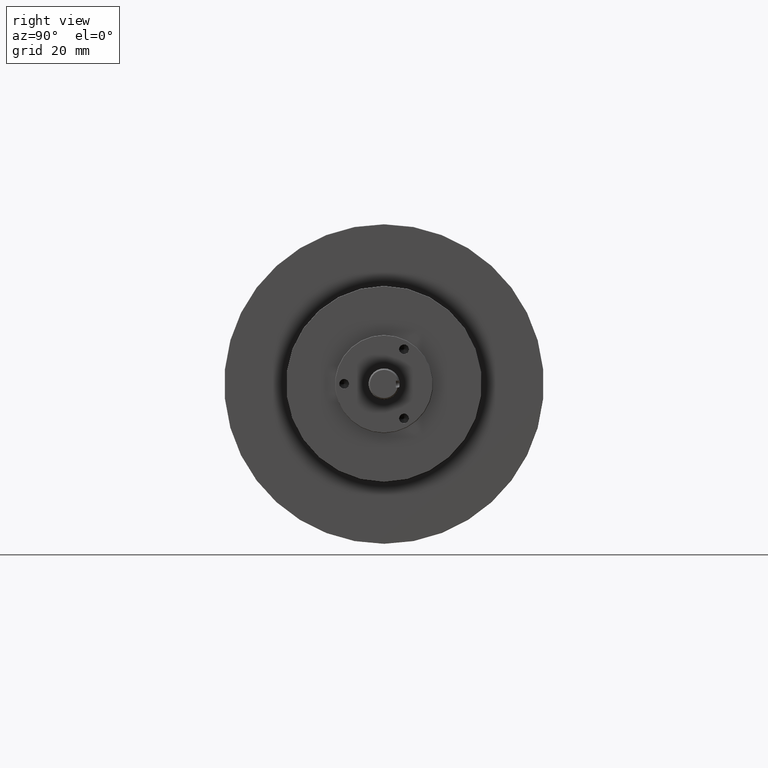
[diagram: clean part render]
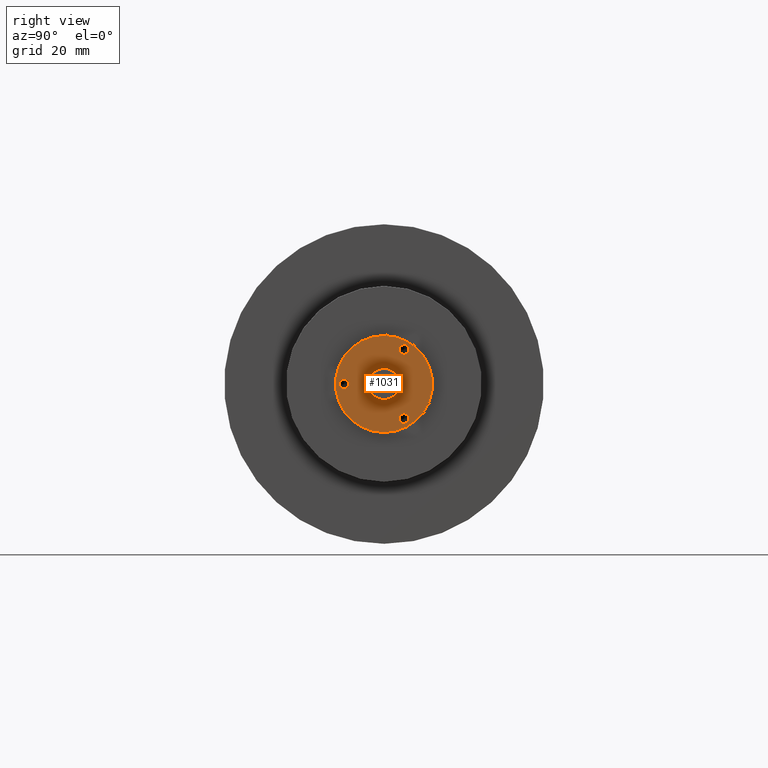
[diagram: same view with one face highlighted and labeled with its STEP entity id]
A machine part, right view. The second image highlights one B-rep face of the part: STEP entity #1031.
In plain terms, the highlighted planar face has unit normal (1, 0, 0).
Its self-contained STEP definition (entity closure, byte-faithful):
#59 = CARTESIAN_POINT ( 'NONE',  ( 6.979999999999999500, 8.388830574159369400E-017, 0.6825000000000000000 ) ) ;
#60 = CARTESIAN_POINT ( 'NONE',  ( 6.979999999999999500, 0.0000000000000000000, -0.6825000000000000000 ) ) ;
#77 = DIRECTION ( 'NONE',  ( 0.0000000000000000000, 0.0000000000000000000, -1.000000000000000000 ) ) ;
#127 = CARTESIAN_POINT ( 'NONE',  ( 6.979999999999999500, 2.675853256136966400E-017, -0.2185000000000000000 ) ) ;
#128 = CARTESIAN_POINT ( 'NONE',  ( 6.979999999999999500, 0.0000000000000000000, 0.2185000000000000000 ) ) ;
#134 = DIRECTION ( 'NONE',  ( 0.0000000000000000000, 0.0000000000000000000, -1.000000000000000000 ) ) ;
#136 = CARTESIAN_POINT ( 'NONE',  ( 6.979999999999999500, -0.5625000000000000000, 0.0000000000000000000 ) ) ;
#143 = DIRECTION ( 'NONE',  ( 1.000000000000000000, -0.0000000000000000000, -0.0000000000000000000 ) ) ;
#165 = DIRECTION ( 'NONE',  ( 1.000000000000000000, 0.0000000000000000000, 0.0000000000000000000 ) ) ;
#166 = CARTESIAN_POINT ( 'NONE',  ( 6.979999999999999500, 0.0000000000000000000, 0.0000000000000000000 ) ) ;
#167 = EDGE_CURVE ( 'NONE', #246, #245, #1280, .T. ) ;
#236 = EDGE_CURVE ( 'NONE', #322, #321, #1306, .T. ) ;
#245 = VERTEX_POINT ( 'NONE', #128 ) ;
#246 = VERTEX_POINT ( 'NONE', #127 ) ;
#279 = VERTEX_POINT ( 'NONE', #59 ) ;
#280 = VERTEX_POINT ( 'NONE', #60 ) ;
#311 = VERTEX_POINT ( 'NONE', #1616 ) ;
#312 = VERTEX_POINT ( 'NONE', #1617 ) ;
#316 = VERTEX_POINT ( 'NONE', #1621 ) ;
#317 = VERTEX_POINT ( 'NONE', #1622 ) ;
#321 = VERTEX_POINT ( 'NONE', #1626 ) ;
#322 = VERTEX_POINT ( 'NONE', #1627 ) ;
#518 = EDGE_CURVE ( 'NONE', #317, #316, #1333, .T. ) ;
#563 = EDGE_CURVE ( 'NONE', #280, #279, #2232, .T. ) ;
#595 = EDGE_CURVE ( 'NONE', #311, #312, #2266, .T. ) ;
#603 = EDGE_CURVE ( 'NONE', #316, #317, #2278, .T. ) ;
#610 = EDGE_CURVE ( 'NONE', #321, #322, #2289, .T. ) ;
#714 = EDGE_LOOP ( 'NONE', ( #908, #909 ) ) ;
#726 = EDGE_LOOP ( 'NONE', ( #910, #911 ) ) ;
#728 = EDGE_LOOP ( 'NONE', ( #912, #913 ) ) ;
#729 = EDGE_LOOP ( 'NONE', ( #914, #915 ) ) ;
#730 = EDGE_LOOP ( 'NONE', ( #916, #917 ) ) ;
#908 = ORIENTED_EDGE ( 'NONE', *, *, #563, .T. ) ;
#909 = ORIENTED_EDGE ( 'NONE', *, *, #2687, .T. ) ;
#910 = ORIENTED_EDGE ( 'NONE', *, *, #2685, .F. ) ;
#911 = ORIENTED_EDGE ( 'NONE', *, *, #595, .F. ) ;
#912 = ORIENTED_EDGE ( 'NONE', *, *, #518, .F. ) ;
#913 = ORIENTED_EDGE ( 'NONE', *, *, #603, .F. ) ;
#914 = ORIENTED_EDGE ( 'NONE', *, *, #236, .F. ) ;
#915 = ORIENTED_EDGE ( 'NONE', *, *, #610, .F. ) ;
#916 = ORIENTED_EDGE ( 'NONE', *, *, #2684, .F. ) ;
#917 = ORIENTED_EDGE ( 'NONE', *, *, #167, .F. ) ;
#1031 = ADVANCED_FACE ( 'NONE', ( #2408, #2407, #2411, #2413, #2409 ), #2141, .T. ) ;
#1280 = CIRCLE ( 'NONE', #1368, 0.2185000000000000000 ) ;
#1306 = CIRCLE ( 'NONE', #1376, 0.06799999999999993500 ) ;
#1333 = CIRCLE ( 'NONE', #1378, 0.06800000000000000500 ) ;
#1368 = AXIS2_PLACEMENT_3D ( 'NONE', #166, #165, #77 ) ;
#1376 = AXIS2_PLACEMENT_3D ( 'NONE', #136, #143, #134 ) ;
#1378 = AXIS2_PLACEMENT_3D ( 'NONE', #1704, #1708, #1709 ) ;
#1428 = AXIS2_PLACEMENT_3D ( 'NONE', #1837, #1838, #1839 ) ;
#1460 = AXIS2_PLACEMENT_3D ( 'NONE', #1933, #1934, #1935 ) ;
#1464 = AXIS2_PLACEMENT_3D ( 'NONE', #1957, #1958, #1959 ) ;
#1470 = AXIS2_PLACEMENT_3D ( 'NONE', #1967, #1974, #1975 ) ;
#1517 = AXIS2_PLACEMENT_3D ( 'NONE', #2145, #2147, #2148 ) ;
#1547 = AXIS2_PLACEMENT_3D ( 'NONE', #2588, #2595, #2596 ) ;
#1567 = AXIS2_PLACEMENT_3D ( 'NONE', #2584, #2585, #2587 ) ;
#1568 = AXIS2_PLACEMENT_3D ( 'NONE', #2580, #2589, #2590 ) ;
#1616 = CARTESIAN_POINT ( 'NONE',  ( 6.979999999999999500, 0.2812499999999954500, -0.4191392896287494100 ) ) ;
#1617 = CARTESIAN_POINT ( 'NONE',  ( 6.979999999999999500, 0.2812499999999954500, -0.5551392896287492600 ) ) ;
#1621 = CARTESIAN_POINT ( 'NONE',  ( 6.979999999999999500, 0.2812500000000023300, 0.5551392896287454800 ) ) ;
#1622 = CARTESIAN_POINT ( 'NONE',  ( 6.979999999999999500, 0.2812500000000023300, 0.4191392896287455300 ) ) ;
#1626 = CARTESIAN_POINT ( 'NONE',  ( 6.979999999999999500, -0.5625000000000000000, 0.06799999999999993500 ) ) ;
#1627 = CARTESIAN_POINT ( 'NONE',  ( 6.979999999999999500, -0.5625000000000000000, -0.06799999999999993500 ) ) ;
#1704 = CARTESIAN_POINT ( 'NONE',  ( 6.979999999999999500, 0.2812500000000023300, 0.4871392896287455300 ) ) ;
#1708 = DIRECTION ( 'NONE',  ( 1.000000000000000000, -0.0000000000000000000, -0.0000000000000000000 ) ) ;
#1709 = DIRECTION ( 'NONE',  ( 0.0000000000000000000, 0.0000000000000000000, -1.000000000000000000 ) ) ;
#1837 = CARTESIAN_POINT ( 'NONE',  ( 6.979999999999999500, 0.0000000000000000000, 0.0000000000000000000 ) ) ;
#1838 = DIRECTION ( 'NONE',  ( 1.000000000000000000, 0.0000000000000000000, 0.0000000000000000000 ) ) ;
#1839 = DIRECTION ( 'NONE',  ( 0.0000000000000000000, 0.0000000000000000000, -1.000000000000000000 ) ) ;
#1933 = CARTESIAN_POINT ( 'NONE',  ( 6.979999999999999500, 0.2812499999999954500, -0.4871392896287493100 ) ) ;
#1934 = DIRECTION ( 'NONE',  ( 1.000000000000000000, -0.0000000000000000000, -0.0000000000000000000 ) ) ;
#1935 = DIRECTION ( 'NONE',  ( 0.0000000000000000000, 0.0000000000000000000, -1.000000000000000000 ) ) ;
#1957 = CARTESIAN_POINT ( 'NONE',  ( 6.979999999999999500, 0.2812500000000023300, 0.4871392896287455300 ) ) ;
#1958 = DIRECTION ( 'NONE',  ( 1.000000000000000000, -0.0000000000000000000, -0.0000000000000000000 ) ) ;
#1959 = DIRECTION ( 'NONE',  ( 0.0000000000000000000, 0.0000000000000000000, -1.000000000000000000 ) ) ;
#1967 = CARTESIAN_POINT ( 'NONE',  ( 6.979999999999999500, -0.5625000000000000000, 0.0000000000000000000 ) ) ;
#1974 = DIRECTION ( 'NONE',  ( 1.000000000000000000, -0.0000000000000000000, -0.0000000000000000000 ) ) ;
#1975 = DIRECTION ( 'NONE',  ( 0.0000000000000000000, 0.0000000000000000000, -1.000000000000000000 ) ) ;
#2141 = PLANE ( 'NONE',  #1517 ) ;
#2145 = CARTESIAN_POINT ( 'NONE',  ( 6.979999999999999500, 0.0000000000000000000, 0.0000000000000000000 ) ) ;
#2147 = DIRECTION ( 'NONE',  ( 1.000000000000000000, 0.0000000000000000000, 0.0000000000000000000 ) ) ;
#2148 = DIRECTION ( 'NONE',  ( 0.0000000000000000000, 0.0000000000000000000, -1.000000000000000000 ) ) ;
#2232 = CIRCLE ( 'NONE', #1428, 0.6825000000000000000 ) ;
#2266 = CIRCLE ( 'NONE', #1460, 0.06799999999999993500 ) ;
#2278 = CIRCLE ( 'NONE', #1464, 0.06800000000000000500 ) ;
#2289 = CIRCLE ( 'NONE', #1470, 0.06799999999999993500 ) ;
#2407 = FACE_BOUND ( 'NONE', #726, .T. ) ;
#2408 = FACE_OUTER_BOUND ( 'NONE', #714, .T. ) ;
#2409 = FACE_BOUND ( 'NONE', #730, .T. ) ;
#2411 = FACE_BOUND ( 'NONE', #728, .T. ) ;
#2413 = FACE_BOUND ( 'NONE', #729, .T. ) ;
#2580 = CARTESIAN_POINT ( 'NONE',  ( 6.979999999999999500, 0.2812499999999954500, -0.4871392896287493100 ) ) ;
#2584 = CARTESIAN_POINT ( 'NONE',  ( 6.979999999999999500, 0.0000000000000000000, 0.0000000000000000000 ) ) ;
#2585 = DIRECTION ( 'NONE',  ( 1.000000000000000000, 0.0000000000000000000, 0.0000000000000000000 ) ) ;
#2587 = DIRECTION ( 'NONE',  ( 0.0000000000000000000, 0.0000000000000000000, -1.000000000000000000 ) ) ;
#2588 = CARTESIAN_POINT ( 'NONE',  ( 6.979999999999999500, 0.0000000000000000000, 0.0000000000000000000 ) ) ;
#2589 = DIRECTION ( 'NONE',  ( 1.000000000000000000, -0.0000000000000000000, -0.0000000000000000000 ) ) ;
#2590 = DIRECTION ( 'NONE',  ( 0.0000000000000000000, 0.0000000000000000000, -1.000000000000000000 ) ) ;
#2595 = DIRECTION ( 'NONE',  ( 1.000000000000000000, 0.0000000000000000000, 0.0000000000000000000 ) ) ;
#2596 = DIRECTION ( 'NONE',  ( 0.0000000000000000000, 0.0000000000000000000, -1.000000000000000000 ) ) ;
#2640 = CIRCLE ( 'NONE', #1567, 0.2185000000000000000 ) ;
#2641 = CIRCLE ( 'NONE', #1568, 0.06799999999999993500 ) ;
#2643 = CIRCLE ( 'NONE', #1547, 0.6825000000000000000 ) ;
#2684 = EDGE_CURVE ( 'NONE', #245, #246, #2640, .T. ) ;
#2685 = EDGE_CURVE ( 'NONE', #312, #311, #2641, .T. ) ;
#2687 = EDGE_CURVE ( 'NONE', #279, #280, #2643, .T. ) ;